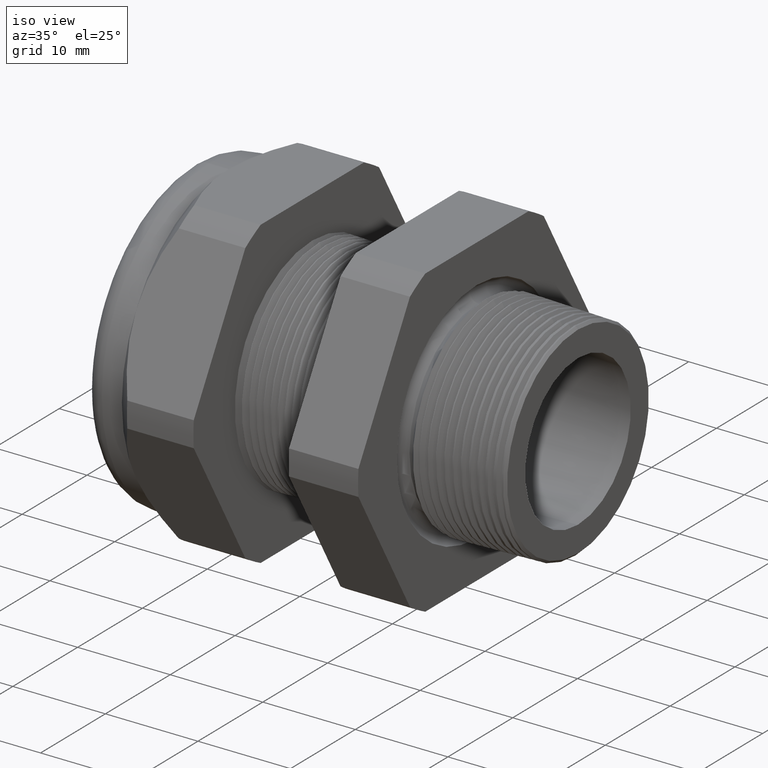
[diagram: clean part render]
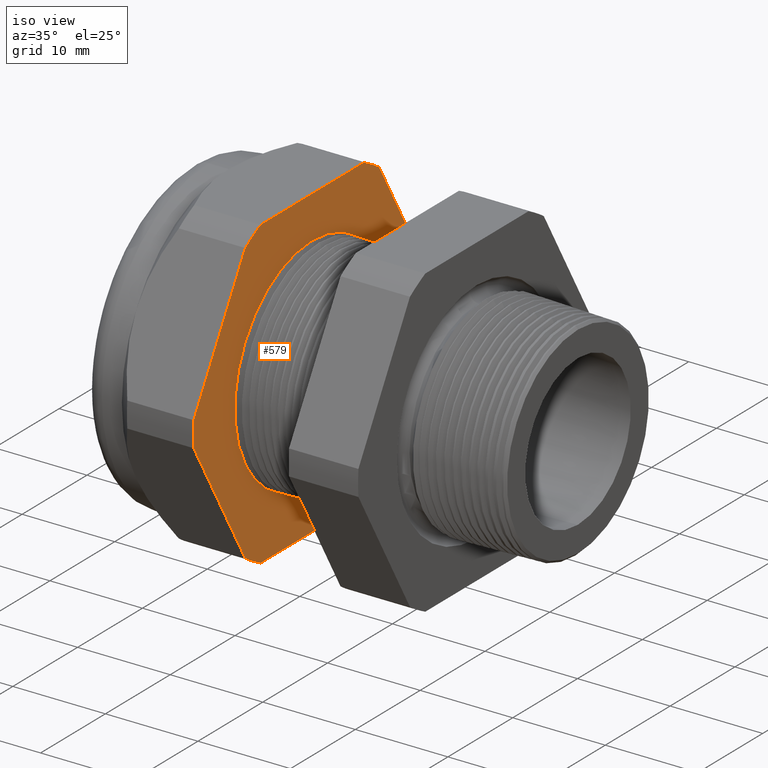
[diagram: same view with one face highlighted and labeled with its STEP entity id]
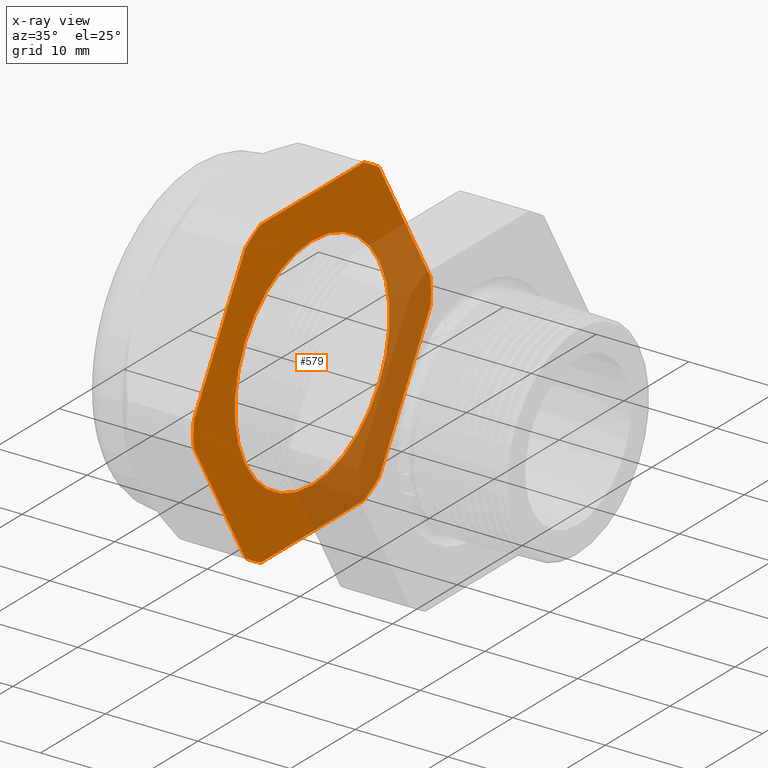
[diagram: x-ray of the same camera — body ghosted, the highlighted face saturated]
A machine part, iso view. The second image highlights one B-rep face of the part: STEP entity #579.
The next image is the same camera in x-ray: the body ghosted, the highlighted face saturated — about 36% of this face is hidden behind the body in this view.
In plain terms, the highlighted planar face has unit normal (1, 0, 0).
Its self-contained STEP definition (entity closure, byte-faithful):
#268 = VERTEX_POINT ( 'NONE', #1633 ) ;
#279 = VERTEX_POINT ( 'NONE', #1656 ) ;
#281 = EDGE_CURVE ( 'NONE', #299, #279, #1655, .T. ) ;
#286 = VERTEX_POINT ( 'NONE', #1640 ) ;
#299 = VERTEX_POINT ( 'NONE', #1682 ) ;
#309 = EDGE_CURVE ( 'NONE', #385, #317, #1720, .T. ) ;
#312 = VERTEX_POINT ( 'NONE', #1709 ) ;
#317 = VERTEX_POINT ( 'NONE', #1757 ) ;
#329 = EDGE_CURVE ( 'NONE', #268, #286, #1742, .T. ) ;
#334 = VERTEX_POINT ( 'NONE', #1780 ) ;
#340 = EDGE_CURVE ( 'NONE', #334, #268, #1773, .T. ) ;
#344 = EDGE_CURVE ( 'NONE', #286, #299, #1830, .T. ) ;
#349 = VERTEX_POINT ( 'NONE', #1815 ) ;
#358 = EDGE_CURVE ( 'NONE', #380, #312, #1801, .T. ) ;
#363 = VERTEX_POINT ( 'NONE', #1849 ) ;
#375 = EDGE_CURVE ( 'NONE', #312, #385, #1839, .T. ) ;
#380 = VERTEX_POINT ( 'NONE', #1869 ) ;
#381 = EDGE_CURVE ( 'NONE', #317, #334, #1868, .T. ) ;
#385 = VERTEX_POINT ( 'NONE', #1917 ) ;
#395 = EDGE_CURVE ( 'NONE', #414, #349, #1907, .T. ) ;
#403 = EDGE_CURVE ( 'NONE', #279, #414, #1891, .T. ) ;
#409 = EDGE_CURVE ( 'NONE', #349, #363, #1941, .T. ) ;
#414 = VERTEX_POINT ( 'NONE', #1926 ) ;
#426 = EDGE_CURVE ( 'NONE', #363, #380, #2004, .T. ) ;
#565 = ORIENTED_EDGE ( 'NONE', *, *, #409, .T. ) ;
#566 = ORIENTED_EDGE ( 'NONE', *, *, #426, .T. ) ;
#567 = ORIENTED_EDGE ( 'NONE', *, *, #358, .T. ) ;
#568 = ORIENTED_EDGE ( 'NONE', *, *, #375, .T. ) ;
#569 = ORIENTED_EDGE ( 'NONE', *, *, #309, .T. ) ;
#570 = ORIENTED_EDGE ( 'NONE', *, *, #381, .T. ) ;
#571 = ORIENTED_EDGE ( 'NONE', *, *, #340, .T. ) ;
#572 = ORIENTED_EDGE ( 'NONE', *, *, #329, .T. ) ;
#573 = ORIENTED_EDGE ( 'NONE', *, *, #344, .T. ) ;
#579 = ADVANCED_FACE ( 'NONE', ( #2245, #2244 ), #2243, .T. ) ;
#580 = EDGE_LOOP ( 'NONE', ( #581, #583 ) ) ;
#581 = ORIENTED_EDGE ( 'NONE', *, *, #582, .F. ) ;
#582 = EDGE_CURVE ( 'NONE', #5669, #5615, #2301, .T. ) ;
#583 = ORIENTED_EDGE ( 'NONE', *, *, #5668, .F. ) ;
#584 = EDGE_LOOP ( 'NONE', ( #585, #586, #587, #565, #566, #567, #568, #569, #570, #571, #572, #573 ) ) ;
#585 = ORIENTED_EDGE ( 'NONE', *, *, #281, .T. ) ;
#586 = ORIENTED_EDGE ( 'NONE', *, *, #403, .T. ) ;
#587 = ORIENTED_EDGE ( 'NONE', *, *, #395, .T. ) ;
#1633 = CARTESIAN_POINT ( 'NONE',  ( -1.010314960629921100, -0.3131489262315934100, -0.6500000000000001300 ) ) ;
#1640 = CARTESIAN_POINT ( 'NONE',  ( -1.010314960629921100, 0.3131489262315934100, -0.6500000000000001300 ) ) ;
#1652 = DIRECTION ( 'NONE',  ( 0.0000000000000000000, 0.4999999999999996100, 0.8660254037844388200 ) ) ;
#1653 = VECTOR ( 'NONE', #1652, 39.37007874015748900 ) ;
#1654 = CARTESIAN_POINT ( 'NONE',  ( -1.010314960629921100, 0.6804165124598852100, -0.1214840301106568700 ) ) ;
#1655 = LINE ( 'NONE', #1654, #1653 ) ;
#1656 = CARTESIAN_POINT ( 'NONE',  ( -1.010314960629921100, 0.7194909755756818700, -0.05380507471562089000 ) ) ;
#1682 = CARTESIAN_POINT ( 'NONE',  ( -1.010314960629921100, 0.4063420493440886800, -0.5961949252843790100 ) ) ;
#1709 = CARTESIAN_POINT ( 'NONE',  ( -1.010314960629921100, -0.4063420493440885700, 0.5961949252843791200 ) ) ;
#1716 = DIRECTION ( 'NONE',  ( 0.0000000000000000000, 0.0000000000000000000, -1.000000000000000000 ) ) ;
#1717 = DIRECTION ( 'NONE',  ( 1.000000000000000000, 0.0000000000000000000, 0.0000000000000000000 ) ) ;
#1718 = CARTESIAN_POINT ( 'NONE',  ( -1.010314960629921100, 0.0000000000000000000, 0.0000000000000000000 ) ) ;
#1719 = AXIS2_PLACEMENT_3D ( 'NONE', #1718, #1717, #1716 ) ;
#1720 = CIRCLE ( 'NONE', #1719, 0.7215000000000000300 ) ;
#1741 = CARTESIAN_POINT ( 'NONE',  ( -1.010314960629921100, 0.4699999999999999700, -0.6500000000000001300 ) ) ;
#1742 = LINE ( 'NONE', #1741, #1793 ) ;
#1757 = CARTESIAN_POINT ( 'NONE',  ( -1.010314960629921100, -0.7194909755756819800, -0.05380507471562082100 ) ) ;
#1769 = DIRECTION ( 'NONE',  ( 0.0000000000000000000, 0.0000000000000000000, -1.000000000000000000 ) ) ;
#1770 = DIRECTION ( 'NONE',  ( 1.000000000000000000, 0.0000000000000000000, 0.0000000000000000000 ) ) ;
#1771 = CARTESIAN_POINT ( 'NONE',  ( -1.010314960629921100, 0.0000000000000000000, 0.0000000000000000000 ) ) ;
#1772 = AXIS2_PLACEMENT_3D ( 'NONE', #1771, #1770, #1769 ) ;
#1773 = CIRCLE ( 'NONE', #1772, 0.7215000000000000300 ) ;
#1780 = CARTESIAN_POINT ( 'NONE',  ( -1.010314960629921100, -0.4063420493440881300, -0.5961949252843793400 ) ) ;
#1792 = DIRECTION ( 'NONE',  ( 0.0000000000000000000, 1.000000000000000000, 0.0000000000000000000 ) ) ;
#1793 = VECTOR ( 'NONE', #1792, 39.37007874015748100 ) ;
#1798 = DIRECTION ( 'NONE',  ( 1.000000000000000000, 0.0000000000000000000, 0.0000000000000000000 ) ) ;
#1799 = CARTESIAN_POINT ( 'NONE',  ( -1.010314960629921100, 0.0000000000000000000, 0.0000000000000000000 ) ) ;
#1800 = AXIS2_PLACEMENT_3D ( 'NONE', #1799, #1798, #1859 ) ;
#1801 = CIRCLE ( 'NONE', #1800, 0.7215000000000000300 ) ;
#1815 = CARTESIAN_POINT ( 'NONE',  ( -1.010314960629921100, 0.4063420493440890700, 0.5961949252843787800 ) ) ;
#1826 = DIRECTION ( 'NONE',  ( 0.0000000000000000000, 0.0000000000000000000, -1.000000000000000000 ) ) ;
#1827 = DIRECTION ( 'NONE',  ( 1.000000000000000000, 0.0000000000000000000, 0.0000000000000000000 ) ) ;
#1828 = CARTESIAN_POINT ( 'NONE',  ( -1.010314960629921100, 0.0000000000000000000, 0.0000000000000000000 ) ) ;
#1829 = AXIS2_PLACEMENT_3D ( 'NONE', #1828, #1827, #1826 ) ;
#1830 = CIRCLE ( 'NONE', #1829, 0.7215000000000000300 ) ;
#1839 = LINE ( 'NONE', #1888, #1881 ) ;
#1849 = CARTESIAN_POINT ( 'NONE',  ( -1.010314960629921100, 0.3131489262315937900, 0.6499999999999999100 ) ) ;
#1859 = DIRECTION ( 'NONE',  ( 0.0000000000000000000, 0.0000000000000000000, -1.000000000000000000 ) ) ;
#1865 = DIRECTION ( 'NONE',  ( 0.0000000000000000000, 0.5000000000000001100, -0.8660254037844386000 ) ) ;
#1866 = VECTOR ( 'NONE', #1865, 39.37007874015748100 ) ;
#1867 = CARTESIAN_POINT ( 'NONE',  ( -1.010314960629921100, -0.4454165124598852300, -0.5285159698893432400 ) ) ;
#1868 = LINE ( 'NONE', #1867, #1866 ) ;
#1869 = CARTESIAN_POINT ( 'NONE',  ( -1.010314960629921100, -0.3131489262315937400, 0.6500000000000000200 ) ) ;
#1880 = DIRECTION ( 'NONE',  ( 0.0000000000000000000, -0.4999999999999995600, -0.8660254037844388200 ) ) ;
#1881 = VECTOR ( 'NONE', #1880, 39.37007874015748900 ) ;
#1888 = CARTESIAN_POINT ( 'NONE',  ( -1.010314960629921100, -0.4454165124598855100, 0.5285159698893426800 ) ) ;
#1891 = CIRCLE ( 'NONE', #1952, 0.7214999999999999200 ) ;
#1904 = DIRECTION ( 'NONE',  ( 0.0000000000000000000, -0.4999999999999998900, 0.8660254037844386000 ) ) ;
#1905 = VECTOR ( 'NONE', #1904, 39.37007874015748100 ) ;
#1906 = CARTESIAN_POINT ( 'NONE',  ( -1.010314960629921100, 0.6804165124598855500, 0.1214840301106571000 ) ) ;
#1907 = LINE ( 'NONE', #1906, #1905 ) ;
#1917 = CARTESIAN_POINT ( 'NONE',  ( -1.010314960629921100, -0.7194909755756819800, 0.05380507471562025900 ) ) ;
#1926 = CARTESIAN_POINT ( 'NONE',  ( -1.010314960629921100, 0.7194909755756817600, 0.05380507471562173000 ) ) ;
#1937 = DIRECTION ( 'NONE',  ( 0.0000000000000000000, 0.0000000000000000000, -1.000000000000000000 ) ) ;
#1938 = DIRECTION ( 'NONE',  ( 1.000000000000000000, 0.0000000000000000000, 0.0000000000000000000 ) ) ;
#1939 = CARTESIAN_POINT ( 'NONE',  ( -1.010314960629921100, 0.0000000000000000000, 0.0000000000000000000 ) ) ;
#1940 = AXIS2_PLACEMENT_3D ( 'NONE', #1939, #1938, #1937 ) ;
#1941 = CIRCLE ( 'NONE', #1940, 0.7215000000000000300 ) ;
#1949 = DIRECTION ( 'NONE',  ( 0.0000000000000000000, 0.0000000000000000000, -1.000000000000000000 ) ) ;
#1950 = DIRECTION ( 'NONE',  ( 1.000000000000000000, 0.0000000000000000000, 0.0000000000000000000 ) ) ;
#1951 = CARTESIAN_POINT ( 'NONE',  ( -1.010314960629921100, 0.0000000000000000000, 0.0000000000000000000 ) ) ;
#1952 = AXIS2_PLACEMENT_3D ( 'NONE', #1951, #1950, #1949 ) ;
#2001 = DIRECTION ( 'NONE',  ( 0.0000000000000000000, -1.000000000000000000, 0.0000000000000000000 ) ) ;
#2002 = VECTOR ( 'NONE', #2001, 39.37007874015748100 ) ;
#2003 = CARTESIAN_POINT ( 'NONE',  ( -1.010314960629921100, 0.4699999999999999700, 0.6499999999999999100 ) ) ;
#2004 = LINE ( 'NONE', #2003, #2002 ) ;
#2239 = DIRECTION ( 'NONE',  ( 0.0000000000000000000, 0.0000000000000000000, -1.000000000000000000 ) ) ;
#2240 = DIRECTION ( 'NONE',  ( 1.000000000000000000, 0.0000000000000000000, 0.0000000000000000000 ) ) ;
#2241 = CARTESIAN_POINT ( 'NONE',  ( -1.010314960629921100, 0.4699999999999999700, 0.0000000000000000000 ) ) ;
#2242 = AXIS2_PLACEMENT_3D ( 'NONE', #2241, #2240, #2239 ) ;
#2243 = PLANE ( 'NONE',  #2242 ) ;
#2244 = FACE_OUTER_BOUND ( 'NONE', #584, .T. ) ;
#2245 = FACE_BOUND ( 'NONE', #580, .T. ) ;
#2297 = DIRECTION ( 'NONE',  ( 0.0000000000000000000, 0.0000000000000000000, -1.000000000000000000 ) ) ;
#2298 = DIRECTION ( 'NONE',  ( 1.000000000000000000, 0.0000000000000000000, 0.0000000000000000000 ) ) ;
#2299 = CARTESIAN_POINT ( 'NONE',  ( -1.010314960629921100, 0.0000000000000000000, 0.0000000000000000000 ) ) ;
#2300 = AXIS2_PLACEMENT_3D ( 'NONE', #2299, #2298, #2297 ) ;
#2301 = CIRCLE ( 'NONE', #2300, 0.4699999999999999700 ) ;
#4439 = CARTESIAN_POINT ( 'NONE',  ( -1.010314960629921100, 5.755839955992559700E-017, -0.4699999999999999700 ) ) ;
#4514 = CARTESIAN_POINT ( 'NONE',  ( -1.010314960629921100, 0.0000000000000000000, 0.4699999999999999700 ) ) ;
#4515 = DIRECTION ( 'NONE',  ( 0.0000000000000000000, 0.0000000000000000000, -1.000000000000000000 ) ) ;
#4516 = DIRECTION ( 'NONE',  ( 1.000000000000000000, 0.0000000000000000000, 0.0000000000000000000 ) ) ;
#4517 = CARTESIAN_POINT ( 'NONE',  ( -1.010314960629921100, 0.0000000000000000000, 0.0000000000000000000 ) ) ;
#4518 = AXIS2_PLACEMENT_3D ( 'NONE', #4517, #4516, #4515 ) ;
#4519 = CIRCLE ( 'NONE', #4518, 0.4699999999999999700 ) ;
#5615 = VERTEX_POINT ( 'NONE', #4439 ) ;
#5668 = EDGE_CURVE ( 'NONE', #5615, #5669, #4519, .T. ) ;
#5669 = VERTEX_POINT ( 'NONE', #4514 ) ;